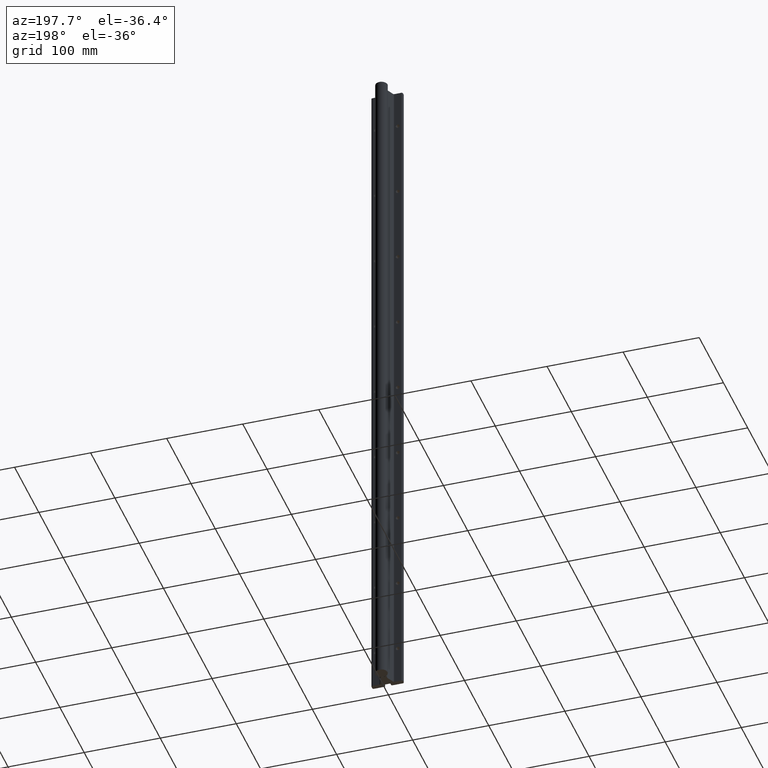
[diagram: clean part render]
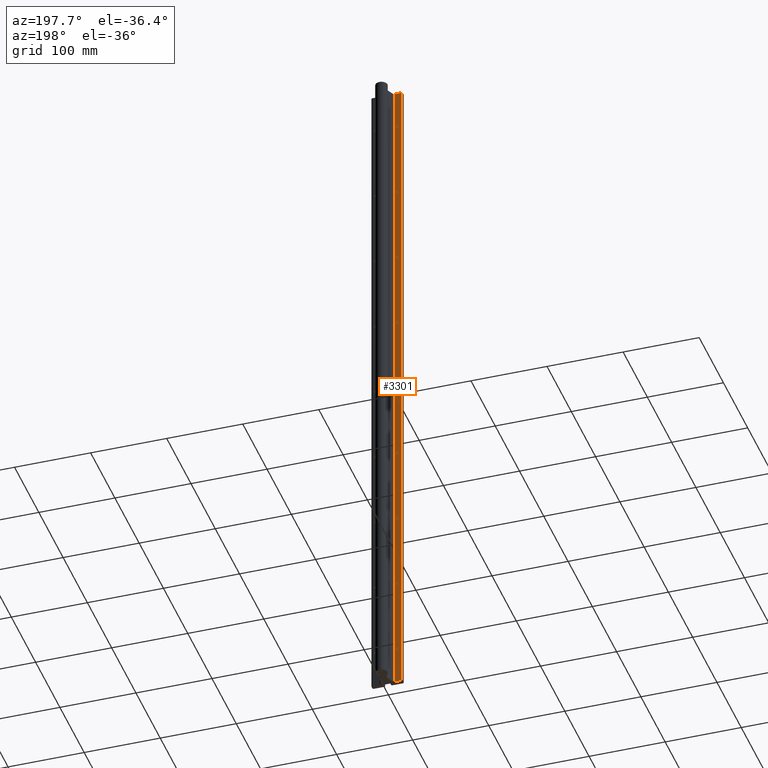
[diagram: same view with one face highlighted and labeled with its STEP entity id]
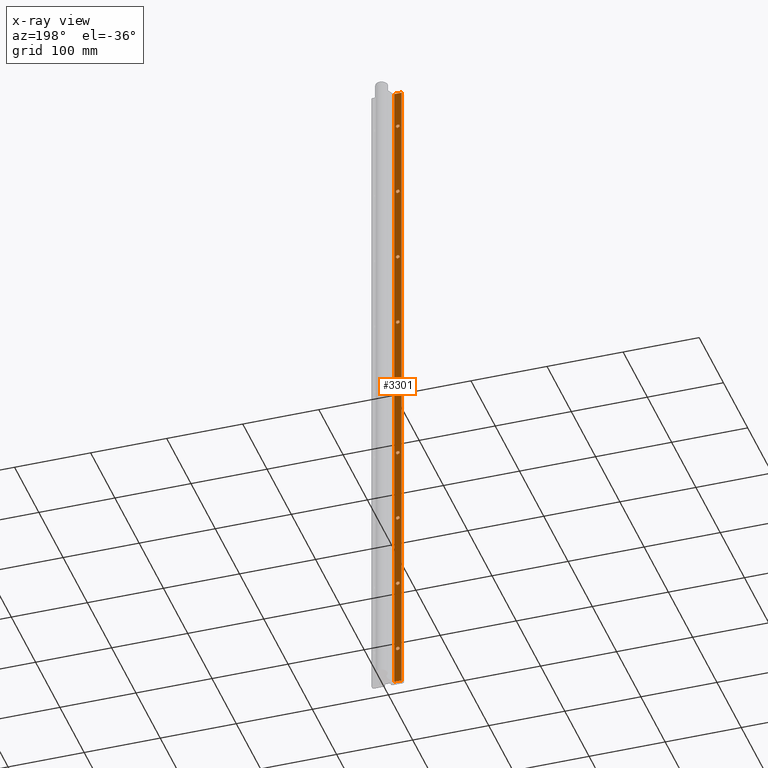
[diagram: x-ray of the same camera — body ghosted, the highlighted face saturated]
A machine part, auxiliary view. The second image highlights one B-rep face of the part: STEP entity #3301.
The next image is the same camera in x-ray: the body ghosted, the highlighted face saturated — about 0% of this face is hidden behind the body in this view.
In plain terms, the highlighted planar face has unit normal (-0, 1, 0).
Its self-contained STEP definition (entity closure, byte-faithful):
#30 = CARTESIAN_POINT ( 'NONE',  ( -0.5625000000000001110, 0.2499999999999994449, -30.09699999999999775 ) ) ;
#31 = CARTESIAN_POINT ( 'NONE',  ( -0.5625000000000001110, 0.2499999999999994449, -26.09699999999999775 ) ) ;
#103 = AXIS2_PLACEMENT_3D ( 'NONE', #6944, #3146, #6879 ) ;
#149 = CARTESIAN_POINT ( 'NONE',  ( -0.5625000000000001110, 0.2499999999999994449, -33.90299999999999869 ) ) ;
#232 = DIRECTION ( 'NONE',  ( 3.736456078648732340E-16, -1.000000000000000000, -0.000000000000000000 ) ) ;
#370 = DIRECTION ( 'NONE',  ( -1.000000000000000000, -3.520422672247763730E-16, 0.000000000000000000 ) ) ;
#431 = CARTESIAN_POINT ( 'NONE',  ( -0.5625000000000001110, 0.2499999999999994449, -25.99999999999999645 ) ) ;
#598 = FACE_BOUND ( 'NONE', #10415, .T. ) ;
#599 = CIRCLE ( 'NONE', #4269, 0.09699999999999994738 ) ;
#744 = EDGE_CURVE ( 'NONE', #5468, #10903, #7317, .T. ) ;
#916 = EDGE_CURVE ( 'NONE', #1726, #10955, #4510, .T. ) ;
#933 = CARTESIAN_POINT ( 'NONE',  ( -0.3869332790000000188, 0.2499999999999994726, 0.000000000000000000 ) ) ;
#978 = DIRECTION ( 'NONE',  ( -1.000000000000000000, -3.520422672247763730E-16, 0.000000000000000000 ) ) ;
#990 = DIRECTION ( 'NONE',  ( -1.000000000000000000, -3.520422672247763730E-16, 0.000000000000000000 ) ) ;
#1053 = ORIENTED_EDGE ( 'NONE', *, *, #6765, .F. ) ;
#1098 = AXIS2_PLACEMENT_3D ( 'NONE', #5803, #4198, #4878 ) ;
#1236 = EDGE_CURVE ( 'NONE', #9732, #9334, #4668, .T. ) ;
#1264 = CARTESIAN_POINT ( 'NONE',  ( -0.5625000000000001110, 0.2499999999999994449, -25.99999999999999645 ) ) ;
#1308 = EDGE_LOOP ( 'NONE', ( #4355, #11146 ) ) ;
#1318 = DIRECTION ( 'NONE',  ( 3.736456078648732340E-16, -1.000000000000000000, -0.000000000000000000 ) ) ;
#1359 = VERTEX_POINT ( 'NONE', #30 ) ;
#1445 = VERTEX_POINT ( 'NONE', #2338 ) ;
#1528 = DIRECTION ( 'NONE',  ( 3.736456078648732340E-16, -1.000000000000000000, -0.000000000000000000 ) ) ;
#1690 = EDGE_LOOP ( 'NONE', ( #3171, #10268 ) ) ;
#1726 = VERTEX_POINT ( 'NONE', #7448 ) ;
#1814 = CARTESIAN_POINT ( 'NONE',  ( -0.5625000000000001110, 0.2499999999999994449, -22.00000000000000000 ) ) ;
#1856 = EDGE_CURVE ( 'NONE', #10903, #5468, #9978, .T. ) ;
#1910 = EDGE_LOOP ( 'NONE', ( #7436, #3068 ) ) ;
#1954 = DIRECTION ( 'NONE',  ( -1.000000000000000000, -3.736456078648732340E-16, 0.000000000000000000 ) ) ;
#1970 = AXIS2_PLACEMENT_3D ( 'NONE', #6961, #7951, #2380 ) ;
#2064 = AXIS2_PLACEMENT_3D ( 'NONE', #8190, #1528, #11907 ) ;
#2140 = AXIS2_PLACEMENT_3D ( 'NONE', #4773, #10228, #4897 ) ;
#2202 = ORIENTED_EDGE ( 'NONE', *, *, #8715, .T. ) ;
#2261 = CARTESIAN_POINT ( 'NONE',  ( -0.5625000000000001110, 0.2499999999999994449, -9.903000000000000469 ) ) ;
#2332 = VERTEX_POINT ( 'NONE', #3472 ) ;
#2338 = CARTESIAN_POINT ( 'NONE',  ( -0.5625000000000001110, 0.2499999999999994449, -14.09699999999999953 ) ) ;
#2380 = DIRECTION ( 'NONE',  ( -1.000000000000000000, -3.520422672247763730E-16, 0.000000000000000000 ) ) ;
#2415 = DIRECTION ( 'NONE',  ( 3.736456078648732340E-16, -1.000000000000000000, -0.000000000000000000 ) ) ;
#2519 = VECTOR ( 'NONE', #2858, 39.37007874015748143 ) ;
#2641 = AXIS2_PLACEMENT_3D ( 'NONE', #431, #9714, #370 ) ;
#2676 = VERTEX_POINT ( 'NONE', #2965 ) ;
#2797 = DIRECTION ( 'NONE',  ( 3.736456078648732340E-16, -1.000000000000000000, -0.000000000000000000 ) ) ;
#2858 = DIRECTION ( 'NONE',  ( 1.000000000000000000, 3.736456078648732340E-16, -0.000000000000000000 ) ) ;
#2862 = CARTESIAN_POINT ( 'NONE',  ( -0.5625000000000001110, 0.2499999999999994449, -13.90299999999999869 ) ) ;
#2863 = CARTESIAN_POINT ( 'NONE',  ( -0.5625000000000001110, 0.2499999999999994449, -29.99999999999999645 ) ) ;
#2891 = AXIS2_PLACEMENT_3D ( 'NONE', #1264, #8735, #5903 ) ;
#2946 = EDGE_LOOP ( 'NONE', ( #11991, #8033 ) ) ;
#2965 = CARTESIAN_POINT ( 'NONE',  ( -0.5625000000000001110, 0.2499999999999994449, -18.09700000000000131 ) ) ;
#3040 = DIRECTION ( 'NONE',  ( 3.736456078648732340E-16, -1.000000000000000000, -0.000000000000000000 ) ) ;
#3068 = ORIENTED_EDGE ( 'NONE', *, *, #916, .T. ) ;
#3113 = EDGE_LOOP ( 'NONE', ( #3183, #7223 ) ) ;
#3146 = DIRECTION ( 'NONE',  ( 3.736456078648732340E-16, -1.000000000000000000, -0.000000000000000000 ) ) ;
#3171 = ORIENTED_EDGE ( 'NONE', *, *, #744, .T. ) ;
#3183 = ORIENTED_EDGE ( 'NONE', *, *, #6690, .T. ) ;
#3301 = ADVANCED_FACE ( 'NONE', ( #598, #4291, #4412, #4346, #8091, #8037, #7377, #3372, #7101, #11815 ), #7168, .T. ) ;
#3351 = EDGE_LOOP ( 'NONE', ( #5646, #2202, #1053, #3777 ) ) ;
#3372 = FACE_BOUND ( 'NONE', #4538, .T. ) ;
#3388 = CARTESIAN_POINT ( 'NONE',  ( -0.5625000000000001110, 0.2499999999999994449, -34.00000000000000000 ) ) ;
#3472 = CARTESIAN_POINT ( 'NONE',  ( -0.5625000000000001110, 0.2499999999999994449, -29.90299999999999514 ) ) ;
#3492 = ORIENTED_EDGE ( 'NONE', *, *, #11765, .T. ) ;
#3494 = VECTOR ( 'NONE', #1954, 39.37007874015748143 ) ;
#3562 = EDGE_LOOP ( 'NONE', ( #11573, #8978 ) ) ;
#3705 = CARTESIAN_POINT ( 'NONE',  ( -0.3869332790000000188, 0.2499999999999994726, -36.00000000000000000 ) ) ;
#3762 = CARTESIAN_POINT ( 'NONE',  ( -0.5625000000000001110, 0.2499999999999994449, -14.00000000000000000 ) ) ;
#3777 = ORIENTED_EDGE ( 'NONE', *, *, #6341, .F. ) ;
#3784 = CIRCLE ( 'NONE', #5954, 0.09699999999999994738 ) ;
#3949 = CARTESIAN_POINT ( 'NONE',  ( -0.5625000000000001110, 0.2499999999999994449, -6.096999999999998643 ) ) ;
#4013 = CARTESIAN_POINT ( 'NONE',  ( -0.5625000000000001110, 0.2499999999999994449, -2.000000000000000000 ) ) ;
#4061 = CARTESIAN_POINT ( 'NONE',  ( -0.5625000000000001110, 0.2499999999999994449, -22.00000000000000000 ) ) ;
#4167 = AXIS2_PLACEMENT_3D ( 'NONE', #10906, #8159, #11879 ) ;
#4171 = DIRECTION ( 'NONE',  ( -1.000000000000000000, -3.520422672247763730E-16, 0.000000000000000000 ) ) ;
#4198 = DIRECTION ( 'NONE',  ( 3.736456078648732340E-16, -1.000000000000000000, -0.000000000000000000 ) ) ;
#4269 = AXIS2_PLACEMENT_3D ( 'NONE', #6829, #10506, #10385 ) ;
#4291 = FACE_BOUND ( 'NONE', #1910, .T. ) ;
#4345 = ORIENTED_EDGE ( 'NONE', *, *, #9984, .T. ) ;
#4346 = FACE_BOUND ( 'NONE', #3113, .T. ) ;
#4355 = ORIENTED_EDGE ( 'NONE', *, *, #6748, .T. ) ;
#4383 = CIRCLE ( 'NONE', #2641, 0.09699999999999994738 ) ;
#4389 = CARTESIAN_POINT ( 'NONE',  ( -0.5625000000000001110, 0.2499999999999994449, -10.09700000000000131 ) ) ;
#4412 = FACE_BOUND ( 'NONE', #1690, .T. ) ;
#4430 = EDGE_CURVE ( 'NONE', #10955, #1726, #8439, .T. ) ;
#4510 = CIRCLE ( 'NONE', #6088, 0.09699999999999994738 ) ;
#4538 = EDGE_LOOP ( 'NONE', ( #4345, #5162 ) ) ;
#4625 = DIRECTION ( 'NONE',  ( -1.000000000000000000, -3.520422672247763730E-16, 0.000000000000000000 ) ) ;
#4668 = CIRCLE ( 'NONE', #2140, 0.09699999999999994738 ) ;
#4773 = CARTESIAN_POINT ( 'NONE',  ( -0.5625000000000001110, 0.2499999999999994449, -2.000000000000000000 ) ) ;
#4854 = CARTESIAN_POINT ( 'NONE',  ( -0.5625000000000001110, 0.2499999999999994449, -5.999999999999999112 ) ) ;
#4878 = DIRECTION ( 'NONE',  ( -1.000000000000000000, -3.520422672247763730E-16, 0.000000000000000000 ) ) ;
#4886 = VERTEX_POINT ( 'NONE', #6916 ) ;
#4897 = DIRECTION ( 'NONE',  ( -1.000000000000000000, -3.520422672247763730E-16, 0.000000000000000000 ) ) ;
#4907 = VERTEX_POINT ( 'NONE', #6065 ) ;
#4970 = AXIS2_PLACEMENT_3D ( 'NONE', #10092, #7323, #10209 ) ;
#5054 = AXIS2_PLACEMENT_3D ( 'NONE', #9417, #2797, #10275 ) ;
#5162 = ORIENTED_EDGE ( 'NONE', *, *, #7937, .T. ) ;
#5468 = VERTEX_POINT ( 'NONE', #4389 ) ;
#5515 = EDGE_CURVE ( 'NONE', #11814, #1445, #11700, .T. ) ;
#5560 = EDGE_CURVE ( 'NONE', #4907, #6660, #11236, .T. ) ;
#5632 = LINE ( 'NONE', #5754, #6610 ) ;
#5646 = ORIENTED_EDGE ( 'NONE', *, *, #5560, .F. ) ;
#5654 = EDGE_CURVE ( 'NONE', #4886, #11496, #599, .T. ) ;
#5666 = CARTESIAN_POINT ( 'NONE',  ( -0.3869332790000000188, 0.2499999999999994726, 0.000000000000000000 ) ) ;
#5700 = EDGE_CURVE ( 'NONE', #9334, #9732, #7386, .T. ) ;
#5754 = CARTESIAN_POINT ( 'NONE',  ( -0.3869332790000000188, 0.2499999999999994726, -37.83356500330708627 ) ) ;
#5803 = CARTESIAN_POINT ( 'NONE',  ( -0.5625000000000001110, 0.2499999999999994449, -5.999999999999999112 ) ) ;
#5903 = DIRECTION ( 'NONE',  ( -1.000000000000000000, -3.520422672247763730E-16, 0.000000000000000000 ) ) ;
#5954 = AXIS2_PLACEMENT_3D ( 'NONE', #4854, #232, #4171 ) ;
#6014 = AXIS2_PLACEMENT_3D ( 'NONE', #4013, #3040, #6642 ) ;
#6033 = AXIS2_PLACEMENT_3D ( 'NONE', #3762, #9301, #4625 ) ;
#6065 = CARTESIAN_POINT ( 'NONE',  ( -0.7524999999999991696, 0.2499999999999993616, -36.00000000000000000 ) ) ;
#6068 = VERTEX_POINT ( 'NONE', #6692 ) ;
#6088 = AXIS2_PLACEMENT_3D ( 'NONE', #1814, #10548, #978 ) ;
#6268 = DIRECTION ( 'NONE',  ( 3.736456078648732340E-16, -1.000000000000000000, -0.000000000000000000 ) ) ;
#6341 = EDGE_CURVE ( 'NONE', #6660, #11205, #5632, .T. ) ;
#6470 = CARTESIAN_POINT ( 'NONE',  ( -0.5625000000000001110, 0.2499999999999994449, -2.096999999999999975 ) ) ;
#6587 = LINE ( 'NONE', #933, #3494 ) ;
#6610 = VECTOR ( 'NONE', #6722, 39.37007874015748143 ) ;
#6642 = DIRECTION ( 'NONE',  ( -1.000000000000000000, -3.520422672247763730E-16, 0.000000000000000000 ) ) ;
#6660 = VERTEX_POINT ( 'NONE', #11177 ) ;
#6690 = EDGE_CURVE ( 'NONE', #1445, #11814, #9182, .T. ) ;
#6692 = CARTESIAN_POINT ( 'NONE',  ( -0.5625000000000001110, 0.2499999999999994449, -5.902999999999999581 ) ) ;
#6722 = DIRECTION ( 'NONE',  ( 0.000000000000000000, 0.000000000000000000, 1.000000000000000000 ) ) ;
#6748 = EDGE_CURVE ( 'NONE', #1359, #2332, #8788, .T. ) ;
#6765 = EDGE_CURVE ( 'NONE', #11205, #9264, #6587, .T. ) ;
#6809 = DIRECTION ( 'NONE',  ( 0.000000000000000000, 0.000000000000000000, 1.000000000000000000 ) ) ;
#6829 = CARTESIAN_POINT ( 'NONE',  ( -0.5625000000000001110, 0.2499999999999994449, -34.00000000000000000 ) ) ;
#6879 = DIRECTION ( 'NONE',  ( -1.000000000000000000, -3.520422672247763730E-16, 0.000000000000000000 ) ) ;
#6909 = CARTESIAN_POINT ( 'NONE',  ( -0.5625000000000001110, 0.2499999999999994449, -17.90299999999999869 ) ) ;
#6916 = CARTESIAN_POINT ( 'NONE',  ( -0.5625000000000001110, 0.2499999999999994449, -34.09700000000000131 ) ) ;
#6944 = CARTESIAN_POINT ( 'NONE',  ( -0.5625000000000001110, 0.2499999999999994449, -18.00000000000000000 ) ) ;
#6961 = CARTESIAN_POINT ( 'NONE',  ( -0.5625000000000001110, 0.2499999999999994449, -10.00000000000000000 ) ) ;
#7101 = FACE_BOUND ( 'NONE', #10479, .T. ) ;
#7168 = PLANE ( 'NONE',  #4167 ) ;
#7223 = ORIENTED_EDGE ( 'NONE', *, *, #5515, .T. ) ;
#7240 = EDGE_CURVE ( 'NONE', #10189, #7925, #8565, .T. ) ;
#7317 = CIRCLE ( 'NONE', #2064, 0.09699999999999994738 ) ;
#7323 = DIRECTION ( 'NONE',  ( 3.736456078648732340E-16, -1.000000000000000000, -0.000000000000000000 ) ) ;
#7377 = FACE_BOUND ( 'NONE', #1308, .T. ) ;
#7386 = CIRCLE ( 'NONE', #6014, 0.09699999999999994738 ) ;
#7393 = ORIENTED_EDGE ( 'NONE', *, *, #8263, .T. ) ;
#7436 = ORIENTED_EDGE ( 'NONE', *, *, #4430, .T. ) ;
#7448 = CARTESIAN_POINT ( 'NONE',  ( -0.5625000000000001110, 0.2499999999999994449, -21.90299999999999869 ) ) ;
#7498 = VECTOR ( 'NONE', #6809, 39.37007874015748143 ) ;
#7513 = AXIS2_PLACEMENT_3D ( 'NONE', #3388, #6268, #9953 ) ;
#7598 = EDGE_CURVE ( 'NONE', #2332, #1359, #8308, .T. ) ;
#7913 = CIRCLE ( 'NONE', #7513, 0.09699999999999994738 ) ;
#7922 = AXIS2_PLACEMENT_3D ( 'NONE', #9698, #1318, #8462 ) ;
#7925 = VERTEX_POINT ( 'NONE', #9656 ) ;
#7937 = EDGE_CURVE ( 'NONE', #6068, #11896, #11246, .T. ) ;
#7951 = DIRECTION ( 'NONE',  ( 3.736456078648732340E-16, -1.000000000000000000, -0.000000000000000000 ) ) ;
#8033 = ORIENTED_EDGE ( 'NONE', *, *, #9459, .T. ) ;
#8037 = FACE_BOUND ( 'NONE', #2946, .T. ) ;
#8091 = FACE_BOUND ( 'NONE', #3562, .T. ) ;
#8159 = DIRECTION ( 'NONE',  ( -3.736456078648732340E-16, 1.000000000000000000, 0.000000000000000000 ) ) ;
#8190 = CARTESIAN_POINT ( 'NONE',  ( -0.5625000000000001110, 0.2499999999999994449, -10.00000000000000000 ) ) ;
#8263 = EDGE_CURVE ( 'NONE', #2676, #10372, #8298, .T. ) ;
#8298 = CIRCLE ( 'NONE', #103, 0.09699999999999994738 ) ;
#8308 = CIRCLE ( 'NONE', #7922, 0.09699999999999994738 ) ;
#8328 = ORIENTED_EDGE ( 'NONE', *, *, #1236, .T. ) ;
#8439 = CIRCLE ( 'NONE', #8852, 0.09699999999999994738 ) ;
#8450 = EDGE_CURVE ( 'NONE', #11496, #4886, #7913, .T. ) ;
#8462 = DIRECTION ( 'NONE',  ( -1.000000000000000000, -3.520422672247763730E-16, 0.000000000000000000 ) ) ;
#8565 = CIRCLE ( 'NONE', #2891, 0.09699999999999994738 ) ;
#8715 = EDGE_CURVE ( 'NONE', #4907, #9264, #10422, .T. ) ;
#8735 = DIRECTION ( 'NONE',  ( 3.736456078648732340E-16, -1.000000000000000000, -0.000000000000000000 ) ) ;
#8788 = CIRCLE ( 'NONE', #10737, 0.09699999999999994738 ) ;
#8852 = AXIS2_PLACEMENT_3D ( 'NONE', #4061, #2415, #11525 ) ;
#8913 = ORIENTED_EDGE ( 'NONE', *, *, #5700, .T. ) ;
#8978 = ORIENTED_EDGE ( 'NONE', *, *, #8450, .T. ) ;
#8988 = CARTESIAN_POINT ( 'NONE',  ( -0.5625000000000001110, 0.2499999999999994449, -1.902999999999999803 ) ) ;
#9182 = CIRCLE ( 'NONE', #5054, 0.09699999999999994738 ) ;
#9264 = VERTEX_POINT ( 'NONE', #9799 ) ;
#9301 = DIRECTION ( 'NONE',  ( 3.736456078648732340E-16, -1.000000000000000000, -0.000000000000000000 ) ) ;
#9334 = VERTEX_POINT ( 'NONE', #6470 ) ;
#9417 = CARTESIAN_POINT ( 'NONE',  ( -0.5625000000000001110, 0.2499999999999994449, -14.00000000000000000 ) ) ;
#9459 = EDGE_CURVE ( 'NONE', #7925, #10189, #4383, .T. ) ;
#9517 = CARTESIAN_POINT ( 'NONE',  ( -0.7524999999999991696, 0.2499999999999993616, -37.83356500330708627 ) ) ;
#9656 = CARTESIAN_POINT ( 'NONE',  ( -0.5625000000000001110, 0.2499999999999994449, -25.90299999999999514 ) ) ;
#9698 = CARTESIAN_POINT ( 'NONE',  ( -0.5625000000000001110, 0.2499999999999994449, -29.99999999999999645 ) ) ;
#9714 = DIRECTION ( 'NONE',  ( 3.736456078648732340E-16, -1.000000000000000000, -0.000000000000000000 ) ) ;
#9732 = VERTEX_POINT ( 'NONE', #8988 ) ;
#9786 = CARTESIAN_POINT ( 'NONE',  ( -0.5625000000000001110, 0.2499999999999994449, -22.09700000000000131 ) ) ;
#9799 = CARTESIAN_POINT ( 'NONE',  ( -0.7524999999999991696, 0.2499999999999993616, 0.000000000000000000 ) ) ;
#9953 = DIRECTION ( 'NONE',  ( -1.000000000000000000, -3.520422672247763730E-16, 0.000000000000000000 ) ) ;
#9978 = CIRCLE ( 'NONE', #1970, 0.09699999999999994738 ) ;
#9984 = EDGE_CURVE ( 'NONE', #11896, #6068, #3784, .T. ) ;
#10092 = CARTESIAN_POINT ( 'NONE',  ( -0.5625000000000001110, 0.2499999999999994449, -18.00000000000000000 ) ) ;
#10156 = DIRECTION ( 'NONE',  ( 3.736456078648732340E-16, -1.000000000000000000, -0.000000000000000000 ) ) ;
#10189 = VERTEX_POINT ( 'NONE', #31 ) ;
#10209 = DIRECTION ( 'NONE',  ( -1.000000000000000000, -3.520422672247763730E-16, 0.000000000000000000 ) ) ;
#10228 = DIRECTION ( 'NONE',  ( 3.736456078648732340E-16, -1.000000000000000000, -0.000000000000000000 ) ) ;
#10251 = CIRCLE ( 'NONE', #4970, 0.09699999999999994738 ) ;
#10268 = ORIENTED_EDGE ( 'NONE', *, *, #1856, .T. ) ;
#10275 = DIRECTION ( 'NONE',  ( -1.000000000000000000, -3.520422672247763730E-16, 0.000000000000000000 ) ) ;
#10372 = VERTEX_POINT ( 'NONE', #6909 ) ;
#10385 = DIRECTION ( 'NONE',  ( -1.000000000000000000, -3.520422672247763730E-16, 0.000000000000000000 ) ) ;
#10415 = EDGE_LOOP ( 'NONE', ( #7393, #3492 ) ) ;
#10422 = LINE ( 'NONE', #9517, #7498 ) ;
#10479 = EDGE_LOOP ( 'NONE', ( #8913, #8328 ) ) ;
#10506 = DIRECTION ( 'NONE',  ( 3.736456078648732340E-16, -1.000000000000000000, -0.000000000000000000 ) ) ;
#10548 = DIRECTION ( 'NONE',  ( 3.736456078648732340E-16, -1.000000000000000000, -0.000000000000000000 ) ) ;
#10737 = AXIS2_PLACEMENT_3D ( 'NONE', #2863, #10156, #990 ) ;
#10903 = VERTEX_POINT ( 'NONE', #2261 ) ;
#10906 = CARTESIAN_POINT ( 'NONE',  ( -0.3869332790000000188, 0.2499999999999994726, -37.83356500330708627 ) ) ;
#10955 = VERTEX_POINT ( 'NONE', #9786 ) ;
#11146 = ORIENTED_EDGE ( 'NONE', *, *, #7598, .T. ) ;
#11177 = CARTESIAN_POINT ( 'NONE',  ( -0.3869332790000000188, 0.2499999999999994726, -36.00000000000000000 ) ) ;
#11205 = VERTEX_POINT ( 'NONE', #5666 ) ;
#11236 = LINE ( 'NONE', #3705, #2519 ) ;
#11246 = CIRCLE ( 'NONE', #1098, 0.09699999999999994738 ) ;
#11496 = VERTEX_POINT ( 'NONE', #149 ) ;
#11525 = DIRECTION ( 'NONE',  ( -1.000000000000000000, -3.520422672247763730E-16, 0.000000000000000000 ) ) ;
#11573 = ORIENTED_EDGE ( 'NONE', *, *, #5654, .T. ) ;
#11700 = CIRCLE ( 'NONE', #6033, 0.09699999999999994738 ) ;
#11765 = EDGE_CURVE ( 'NONE', #10372, #2676, #10251, .T. ) ;
#11814 = VERTEX_POINT ( 'NONE', #2862 ) ;
#11815 = FACE_OUTER_BOUND ( 'NONE', #3351, .T. ) ;
#11879 = DIRECTION ( 'NONE',  ( -1.000000000000000000, -3.736456078648732340E-16, 0.000000000000000000 ) ) ;
#11896 = VERTEX_POINT ( 'NONE', #3949 ) ;
#11907 = DIRECTION ( 'NONE',  ( -1.000000000000000000, -3.520422672247763730E-16, 0.000000000000000000 ) ) ;
#11991 = ORIENTED_EDGE ( 'NONE', *, *, #7240, .T. ) ;